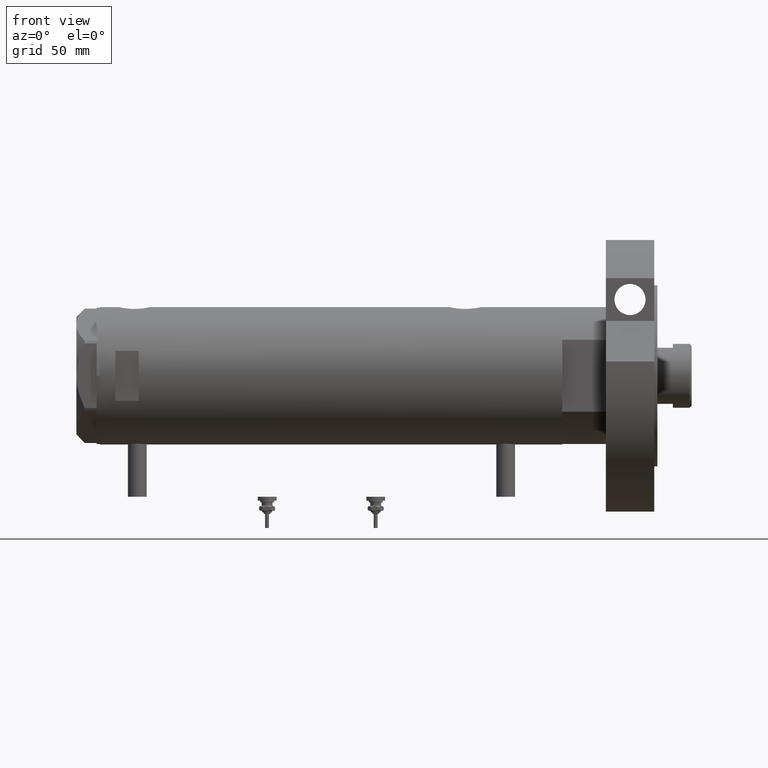
[diagram: clean part render]
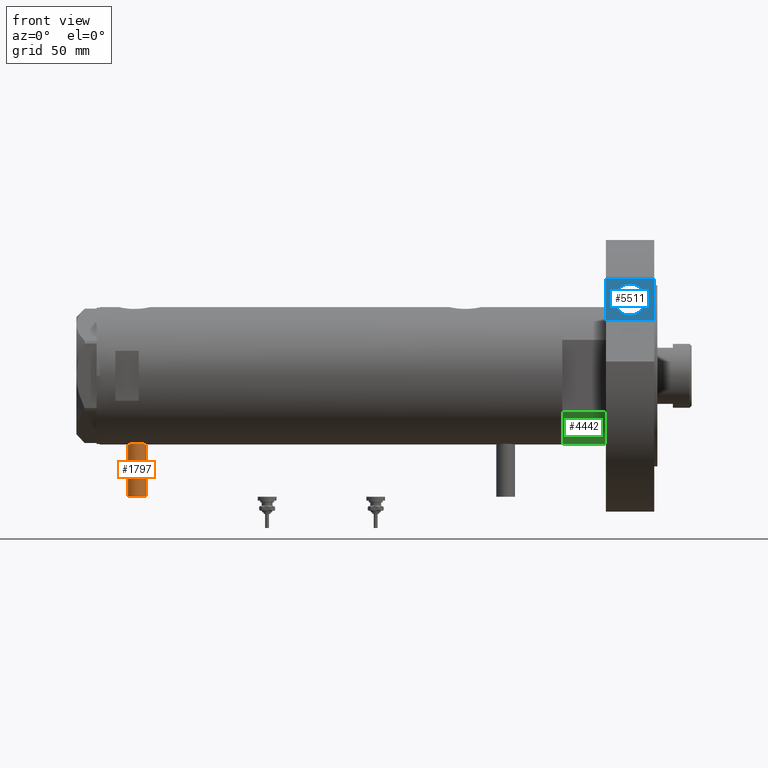
[diagram: same view with three faces highlighted in distinct colors, each labeled with its STEP entity id]
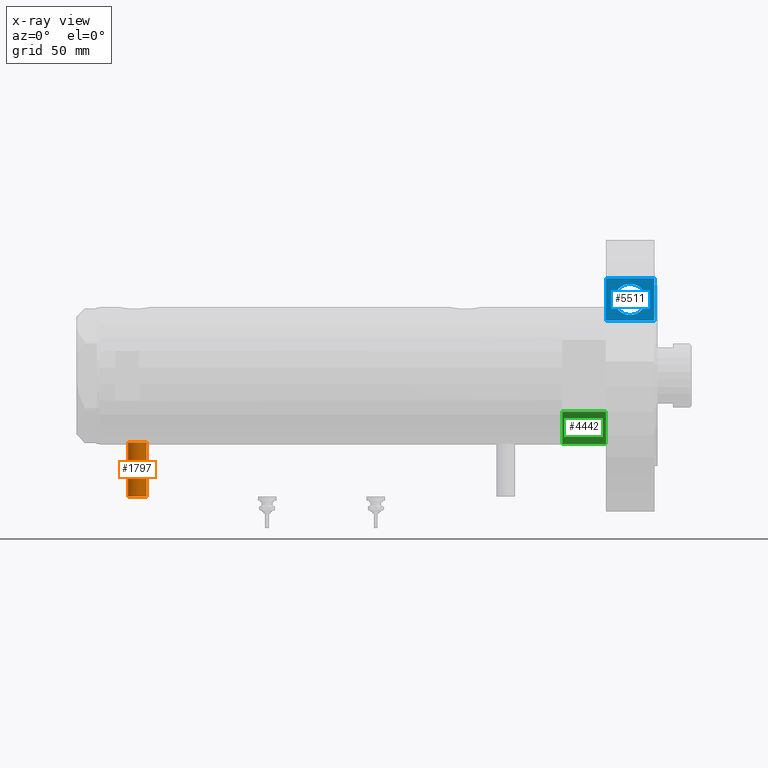
[diagram: x-ray of the same camera — body ghosted, the three highlighted faces saturated]
A machine part, front view with three faces highlighted in distinct colors.
The next image is the same camera in x-ray (body ghosted, the three faces saturated) — at least one of them is partly hidden behind the body in this view.
Their STEP definitions:

[orange] entity #1797 — the highlighted cylindrical surface (edge-blend (fillet) strip) has radius 6 mm, axis along (0, 0, 1).
#79 = FACE_OUTER_BOUND ( 'NONE', #2486, .T. ) ;
#438 = DIRECTION ( 'NONE',  ( -1.000000000000000000, 0.000000000000000000, 0.000000000000000000 ) ) ;
#608 = ORIENTED_EDGE ( 'NONE', *, *, #4190, .F. ) ;
#817 = EDGE_CURVE ( 'NONE', #5399, #4818, #2685, .T. ) ;
#1146 = CIRCLE ( 'NONE', #3334, 6.000000000000005329 ) ;
#1353 = LINE ( 'NONE', #3678, #7305 ) ;
#1362 = VECTOR ( 'NONE', #2110, 1000.000000000000000 ) ;
#1577 = DIRECTION ( 'NONE',  ( 0.000000000000000000, 0.000000000000000000, 1.000000000000000000 ) ) ;
#1637 = CARTESIAN_POINT ( 'NONE',  ( -42.79999999999999716, 7.347880794884152277E-16, 130.2000000000000171 ) ) ;
#1674 = CYLINDRICAL_SURFACE ( 'NONE', #2722, 6.000000000000019540 ) ;
#1797 = ADVANCED_FACE ( 'NONE', ( #79 ), #1674, .T. ) ;
#2110 = DIRECTION ( 'NONE',  ( 1.000000000000000000, -0.000000000000000000, -0.000000000000000000 ) ) ;
#2283 = CARTESIAN_POINT ( 'NONE',  ( -77.50000000000000000, 0.000000000000000000, 124.2000000000000028 ) ) ;
#2314 = DIRECTION ( 'NONE',  ( 1.000000000000000000, -0.000000000000000000, -0.000000000000000000 ) ) ;
#2400 = ORIENTED_EDGE ( 'NONE', *, *, #6595, .T. ) ;
#2486 = EDGE_LOOP ( 'NONE', ( #7282, #608, #2400, #6918 ) ) ;
#2685 = LINE ( 'NONE', #4992, #1362 ) ;
#2722 = AXIS2_PLACEMENT_3D ( 'NONE', #2283, #2314, #6348 ) ;
#3334 = AXIS2_PLACEMENT_3D ( 'NONE', #3938, #438, #1577 ) ;
#3664 = VERTEX_POINT ( 'NONE', #5354 ) ;
#3678 = CARTESIAN_POINT ( 'NONE',  ( -77.50000000000000000, 0.000000000000000000, 118.1999999999999886 ) ) ;
#3786 = CARTESIAN_POINT ( 'NONE',  ( -77.50000000000000000, 0.000000000000000000, 118.1999999999999886 ) ) ;
#3938 = CARTESIAN_POINT ( 'NONE',  ( -77.50000000000000000, 0.000000000000000000, 124.2000000000000028 ) ) ;
#4190 = EDGE_CURVE ( 'NONE', #5763, #5399, #1146, .T. ) ;
#4818 = VERTEX_POINT ( 'NONE', #1637 ) ;
#4992 = CARTESIAN_POINT ( 'NONE',  ( -77.50000000000000000, 7.347880794884138472E-16, 130.2000000000000171 ) ) ;
#5354 = CARTESIAN_POINT ( 'NONE',  ( -42.79999999999999716, 0.000000000000000000, 118.1999999999999886 ) ) ;
#5399 = VERTEX_POINT ( 'NONE', #6866 ) ;
#5763 = VERTEX_POINT ( 'NONE', #3786 ) ;
#5776 = DIRECTION ( 'NONE',  ( -1.000000000000000000, 0.000000000000000000, 0.000000000000000000 ) ) ;
#5817 = CARTESIAN_POINT ( 'NONE',  ( -42.79999999999999716, 0.000000000000000000, 124.2000000000000028 ) ) ;
#5841 = AXIS2_PLACEMENT_3D ( 'NONE', #5817, #5776, #5856 ) ;
#5856 = DIRECTION ( 'NONE',  ( 0.000000000000000000, 0.000000000000000000, 1.000000000000000000 ) ) ;
#6348 = DIRECTION ( 'NONE',  ( 0.000000000000000000, 0.000000000000000000, -1.000000000000000000 ) ) ;
#6595 = EDGE_CURVE ( 'NONE', #5763, #3664, #1353, .T. ) ;
#6757 = DIRECTION ( 'NONE',  ( 1.000000000000000000, -0.000000000000000000, -0.000000000000000000 ) ) ;
#6866 = CARTESIAN_POINT ( 'NONE',  ( -77.50000000000000000, 7.347880794884152277E-16, 130.2000000000000171 ) ) ;
#6918 = ORIENTED_EDGE ( 'NONE', *, *, #7544, .T. ) ;
#7195 = CIRCLE ( 'NONE', #5841, 6.000000000000005329 ) ;
#7282 = ORIENTED_EDGE ( 'NONE', *, *, #817, .F. ) ;
#7305 = VECTOR ( 'NONE', #6757, 1000.000000000000000 ) ;
#7544 = EDGE_CURVE ( 'NONE', #3664, #4818, #7195, .T. ) ;

[blue] entity #5511 — the highlighted planar face has unit normal (-0, 1, 0).
#26 = FACE_BOUND ( 'NONE', #910, .T. ) ;
#237 = ORIENTED_EDGE ( 'NONE', *, *, #2102, .T. ) ;
#318 = CARTESIAN_POINT ( 'NONE',  ( 35.23236590573035443, 60.47687547247904405, 0.000000000000000000 ) ) ;
#566 = VECTOR ( 'NONE', #4085, 1000.000000000000000 ) ;
#631 = CARTESIAN_POINT ( 'NONE',  ( 48.88736590573034846, 60.47687547247904405, 5.499999999999998224 ) ) ;
#872 = EDGE_CURVE ( 'NONE', #7239, #5875, #6662, .T. ) ;
#910 = EDGE_LOOP ( 'NONE', ( #237, #6030 ) ) ;
#1072 = CARTESIAN_POINT ( 'NONE',  ( 48.88736590573034846, 60.47687547247904405, 15.50000000000000000 ) ) ;
#1215 = ORIENTED_EDGE ( 'NONE', *, *, #5899, .T. ) ;
#1347 = EDGE_CURVE ( 'NONE', #3736, #4981, #3292, .T. ) ;
#1397 = AXIS2_PLACEMENT_3D ( 'NONE', #1072, #3429, #6276 ) ;
#1554 = CARTESIAN_POINT ( 'NONE',  ( 35.23236590573035443, 60.47687547247904405, 0.000000000000000000 ) ) ;
#1625 = AXIS2_PLACEMENT_3D ( 'NONE', #3649, #5996, #7454 ) ;
#1771 = DIRECTION ( 'NONE',  ( 0.000000000000000000, -1.000000000000000000, 0.000000000000000000 ) ) ;
#2102 = EDGE_CURVE ( 'NONE', #5425, #5512, #3074, .T. ) ;
#2231 = CARTESIAN_POINT ( 'NONE',  ( 48.88736590573034846, 60.47687547247904405, 25.50000000000000355 ) ) ;
#2255 = CARTESIAN_POINT ( 'NONE',  ( 0.000000000000000000, 60.47687547247904405, 31.00000000000000000 ) ) ;
#2330 = FACE_OUTER_BOUND ( 'NONE', #5801, .T. ) ;
#2339 = VECTOR ( 'NONE', #3950, 1000.000000000000000 ) ;
#3074 = CIRCLE ( 'NONE', #1625, 10.00000000000000178 ) ;
#3292 = LINE ( 'NONE', #4505, #2339 ) ;
#3429 = DIRECTION ( 'NONE',  ( 0.000000000000000000, -1.000000000000000000, 0.000000000000000000 ) ) ;
#3649 = CARTESIAN_POINT ( 'NONE',  ( 48.88736590573034846, 60.47687547247904405, 15.50000000000000000 ) ) ;
#3736 = VERTEX_POINT ( 'NONE', #1554 ) ;
#3829 = ORIENTED_EDGE ( 'NONE', *, *, #872, .F. ) ;
#3863 = DIRECTION ( 'NONE',  ( 1.000000000000000000, 0.000000000000000000, 0.000000000000000000 ) ) ;
#3950 = DIRECTION ( 'NONE',  ( -0.000000000000000000, -0.000000000000000000, 1.000000000000000000 ) ) ;
#4085 = DIRECTION ( 'NONE',  ( 1.000000000000000000, 0.000000000000000000, -0.000000000000000000 ) ) ;
#4092 = DIRECTION ( 'NONE',  ( 0.000000000000000000, -0.000000000000000000, -1.000000000000000000 ) ) ;
#4262 = CARTESIAN_POINT ( 'NONE',  ( 62.54236590573034249, 60.47687547247904405, 0.000000000000000000 ) ) ;
#4345 = LINE ( 'NONE', #318, #5711 ) ;
#4505 = CARTESIAN_POINT ( 'NONE',  ( 35.23236590573035443, 60.47687547247904405, 0.000000000000000000 ) ) ;
#4654 = PLANE ( 'NONE',  #6423 ) ;
#4668 = CIRCLE ( 'NONE', #1397, 10.00000000000000178 ) ;
#4797 = EDGE_CURVE ( 'NONE', #5512, #5425, #4668, .T. ) ;
#4981 = VERTEX_POINT ( 'NONE', #5522 ) ;
#5295 = ORIENTED_EDGE ( 'NONE', *, *, #7453, .F. ) ;
#5425 = VERTEX_POINT ( 'NONE', #2231 ) ;
#5450 = ORIENTED_EDGE ( 'NONE', *, *, #1347, .T. ) ;
#5511 = ADVANCED_FACE ( 'NONE', ( #26, #2330 ), #4654, .F. ) ;
#5512 = VERTEX_POINT ( 'NONE', #631 ) ;
#5522 = CARTESIAN_POINT ( 'NONE',  ( 35.23236590573035443, 60.47687547247904405, 31.00000000000000000 ) ) ;
#5711 = VECTOR ( 'NONE', #3863, 1000.000000000000000 ) ;
#5785 = CARTESIAN_POINT ( 'NONE',  ( 62.54236590573034249, 60.47687547247904405, 31.00000000000000000 ) ) ;
#5801 = EDGE_LOOP ( 'NONE', ( #1215, #3829, #5295, #5450 ) ) ;
#5875 = VERTEX_POINT ( 'NONE', #5785 ) ;
#5899 = EDGE_CURVE ( 'NONE', #4981, #5875, #6358, .T. ) ;
#5996 = DIRECTION ( 'NONE',  ( 0.000000000000000000, -1.000000000000000000, 0.000000000000000000 ) ) ;
#6011 = VECTOR ( 'NONE', #6123, 1000.000000000000000 ) ;
#6030 = ORIENTED_EDGE ( 'NONE', *, *, #4797, .T. ) ;
#6123 = DIRECTION ( 'NONE',  ( -0.000000000000000000, -0.000000000000000000, 1.000000000000000000 ) ) ;
#6276 = DIRECTION ( 'NONE',  ( 0.000000000000000000, 0.000000000000000000, -1.000000000000000000 ) ) ;
#6358 = LINE ( 'NONE', #2255, #566 ) ;
#6423 = AXIS2_PLACEMENT_3D ( 'NONE', #7020, #1771, #4092 ) ;
#6662 = LINE ( 'NONE', #6778, #6011 ) ;
#6778 = CARTESIAN_POINT ( 'NONE',  ( 62.54236590573034249, 60.47687547247904405, 0.000000000000000000 ) ) ;
#7020 = CARTESIAN_POINT ( 'NONE',  ( 35.23236590573035443, 60.47687547247904405, 0.000000000000000000 ) ) ;
#7239 = VERTEX_POINT ( 'NONE', #4262 ) ;
#7453 = EDGE_CURVE ( 'NONE', #3736, #7239, #4345, .T. ) ;
#7454 = DIRECTION ( 'NONE',  ( 0.000000000000000000, 0.000000000000000000, -1.000000000000000000 ) ) ;

[green] entity #4442 — the highlighted cylindrical surface (partial cylindrical patch) has radius 44 mm, axis along (-1, -0, 0).
#131 = VERTEX_POINT ( 'NONE', #6833 ) ;
#262 = EDGE_CURVE ( 'NONE', #4968, #131, #5595, .T. ) ;
#515 = CYLINDRICAL_SURFACE ( 'NONE', #4783, 44.00000000000000000 ) ;
#724 = ORIENTED_EDGE ( 'NONE', *, *, #262, .F. ) ;
#908 = CARTESIAN_POINT ( 'NONE',  ( 23.01629857296780557, 37.50000000000000000, 0.000000000000000000 ) ) ;
#1419 = CARTESIAN_POINT ( 'NONE',  ( 23.01629857296780557, 37.50000000000000000, 0.000000000000000000 ) ) ;
#1805 = EDGE_CURVE ( 'NONE', #4968, #6575, #4543, .T. ) ;
#1990 = LINE ( 'NONE', #1419, #6507 ) ;
#2854 = CARTESIAN_POINT ( 'NONE',  ( 0.000000000000000000, 0.000000000000000000, 0.000000000000000000 ) ) ;
#2865 = FACE_OUTER_BOUND ( 'NONE', #5217, .T. ) ;
#3035 = EDGE_CURVE ( 'NONE', #6575, #5737, #1990, .T. ) ;
#3309 = DIRECTION ( 'NONE',  ( 1.000000000000000000, 0.000000000000000000, 0.000000000000000000 ) ) ;
#3475 = DIRECTION ( 'NONE',  ( -0.000000000000000000, -0.000000000000000000, -1.000000000000000000 ) ) ;
#3783 = CARTESIAN_POINT ( 'NONE',  ( 23.01629857296780557, -37.50000000000000000, 0.000000000000000000 ) ) ;
#3818 = CARTESIAN_POINT ( 'NONE',  ( 0.000000000000000000, 0.000000000000000000, 27.89999999999999858 ) ) ;
#3830 = CARTESIAN_POINT ( 'NONE',  ( 23.01629857296780557, 37.50000000000000000, 27.89999999999999858 ) ) ;
#4074 = DIRECTION ( 'NONE',  ( 1.000000000000000000, 0.000000000000000000, 0.000000000000000000 ) ) ;
#4197 = CIRCLE ( 'NONE', #7511, 44.00000000000000000 ) ;
#4442 = ADVANCED_FACE ( 'NONE', ( #2865 ), #515, .T. ) ;
#4543 = CIRCLE ( 'NONE', #5150, 44.00000000000000000 ) ;
#4625 = EDGE_CURVE ( 'NONE', #131, #5737, #4197, .T. ) ;
#4783 = AXIS2_PLACEMENT_3D ( 'NONE', #5181, #3475, #7546 ) ;
#4968 = VERTEX_POINT ( 'NONE', #5443 ) ;
#5150 = AXIS2_PLACEMENT_3D ( 'NONE', #2854, #7082, #4074 ) ;
#5181 = CARTESIAN_POINT ( 'NONE',  ( 0.000000000000000000, 0.000000000000000000, 27.89999999999999858 ) ) ;
#5217 = EDGE_LOOP ( 'NONE', ( #6495, #724, #6416, #6784 ) ) ;
#5247 = VECTOR ( 'NONE', #6128, 1000.000000000000000 ) ;
#5443 = CARTESIAN_POINT ( 'NONE',  ( 23.01629857296780557, -37.50000000000000000, 0.000000000000000000 ) ) ;
#5595 = LINE ( 'NONE', #3783, #5247 ) ;
#5623 = DIRECTION ( 'NONE',  ( -0.000000000000000000, -0.000000000000000000, 1.000000000000000000 ) ) ;
#5737 = VERTEX_POINT ( 'NONE', #3830 ) ;
#6128 = DIRECTION ( 'NONE',  ( -0.000000000000000000, -0.000000000000000000, 1.000000000000000000 ) ) ;
#6160 = DIRECTION ( 'NONE',  ( 0.000000000000000000, 0.000000000000000000, 1.000000000000000000 ) ) ;
#6416 = ORIENTED_EDGE ( 'NONE', *, *, #1805, .T. ) ;
#6495 = ORIENTED_EDGE ( 'NONE', *, *, #4625, .F. ) ;
#6507 = VECTOR ( 'NONE', #5623, 1000.000000000000000 ) ;
#6575 = VERTEX_POINT ( 'NONE', #908 ) ;
#6784 = ORIENTED_EDGE ( 'NONE', *, *, #3035, .T. ) ;
#6833 = CARTESIAN_POINT ( 'NONE',  ( 23.01629857296780557, -37.50000000000000000, 27.89999999999999858 ) ) ;
#7082 = DIRECTION ( 'NONE',  ( 0.000000000000000000, 0.000000000000000000, 1.000000000000000000 ) ) ;
#7511 = AXIS2_PLACEMENT_3D ( 'NONE', #3818, #6160, #3309 ) ;
#7546 = DIRECTION ( 'NONE',  ( -1.000000000000000000, 0.000000000000000000, 0.000000000000000000 ) ) ;